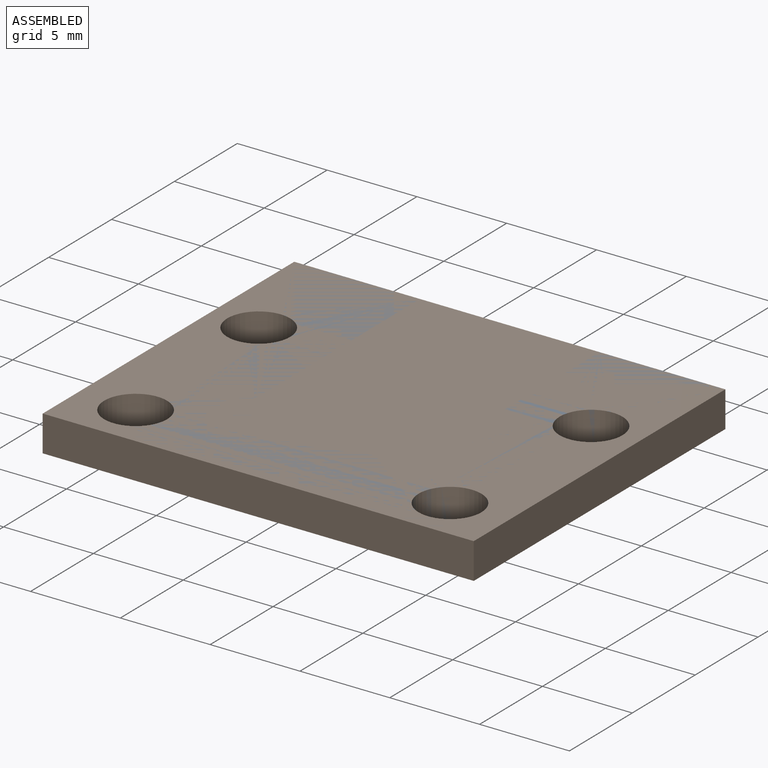
[diagram: assembled view]
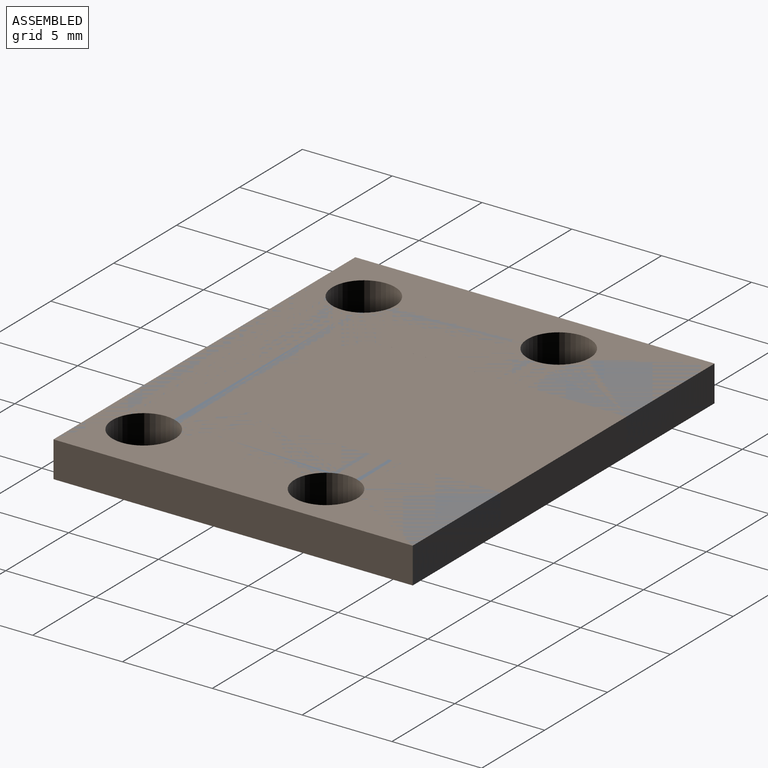
[diagram: assembled view, second angle]
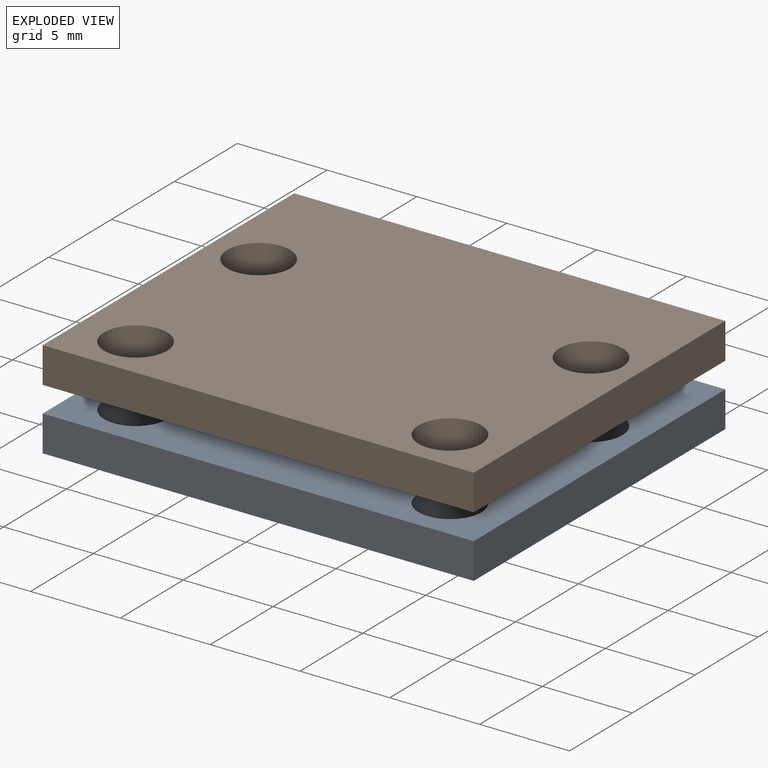
[diagram: exploded view]
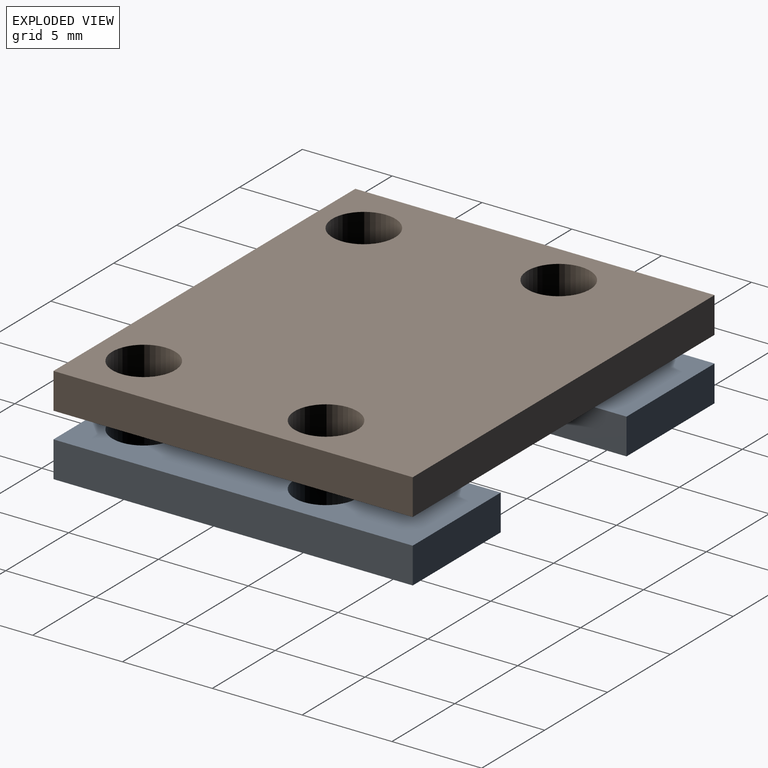
[diagram: exploded view, second angle]
ASSEMBLY  parts=2 mates=2
PART A: 16 faces, bbox 24x20x2 mm
  f0: plane 24x2mm, normal (0,-1,0), area 48mm2, adj f1,f12,f14,f15
  f1: plane 20x2mm, normal (1,0,0), area 40mm2, adj f0,f2,f14,f15
  f2: plane 7x2mm, normal (0,1,0), area 14mm2, adj f1,f3,f14,f15
  f3: plane 13x2mm, normal (-1,0,0), area 26mm2, adj f2,f4,f14,f15
  f4: cylinder r=2mm len=2mm, axis (0,0,-1), area 6.3mm2, adj f3,f5,f14,f15
  f5: plane 6x2mm, normal (0,1,0), area 12mm2, adj f4,f6,f14,f15
  f6: cylinder r=2mm len=2mm, axis (0,0,-1), area 6.3mm2, adj f5,f7,f14,f15
  f7: plane 13x2mm, normal (1,0,0), area 26mm2, adj f6,f8,f14,f15
  f8: plane 7x2mm, normal (0,1,0), area 14mm2, adj f7,f12,f14,f15
  f9: cylinder r=1.75mm len=3.5mm, axis (0,0,-1), area 22mm2, adj f14,f15
  f10: cylinder r=1.75mm len=3.5mm, axis (0,0,-1), area 22mm2, adj f14,f15
  f11: cylinder r=1.75mm len=3.5mm, axis (0,0,-1), area 22mm2, adj f14,f15
  f12: plane 20x2mm, normal (-1,0,0), area 40mm2, adj f0,f8,f14,f15
  f13: cylinder r=1.75mm len=3.5mm, axis (0,0,-1), area 22mm2, adj f14,f15
  f14: plane 24x20mm, normal (0,0,1), area 293.2mm2, adj f0,f1,f2,f3,f4,f5,f6,f7
  f15: plane 24x20mm, normal (0,0,-1), area 293.2mm2, adj f0,f1,f2,f3,f4,f5,f6,f7
PART B: 10 faces, bbox 24x20x2 mm
  f0: plane 24x2mm, normal (0,-1,0), area 48mm2, adj f1,f6,f8,f9
  f1: plane 20x2mm, normal (1,0,0), area 40mm2, adj f0,f2,f8,f9
  f2: plane 24x2mm, normal (0,1,0), area 48mm2, adj f1,f6,f8,f9
  f3: cylinder r=1.75mm len=3.5mm, axis (0,0,-1), area 22mm2, adj f8,f9
  f4: cylinder r=1.75mm len=3.5mm, axis (0,0,-1), area 22mm2, adj f8,f9
  f5: cylinder r=1.75mm len=3.5mm, axis (0,0,-1), area 22mm2, adj f8,f9
  f6: plane 20x2mm, normal (-1,0,0), area 40mm2, adj f0,f2,f8,f9
  f7: cylinder r=1.75mm len=3.5mm, axis (0,0,-1), area 22mm2, adj f8,f9
  f8: plane 24x20mm, normal (0,0,1), area 441.5mm2, adj f0,f1,f2,f3,f4,f5,f6,f7
  f9: plane 24x20mm, normal (0,0,-1), area 441.5mm2, adj f0,f1,f2,f3,f4,f5,f6,f7
PLACE A t=(12.49,-3.3,10.36)mm
PLACE B t=(-14.27,-3.3,10.36)mm
MATE parallel B.f8 <-> A.f15  axis (0,0,1) through (24.49,6.87,12.36)mm
MATE cylindrical A.f13 <-> B.f7  axis (0,0,1) through (15.24,9.95,12.36)mm
